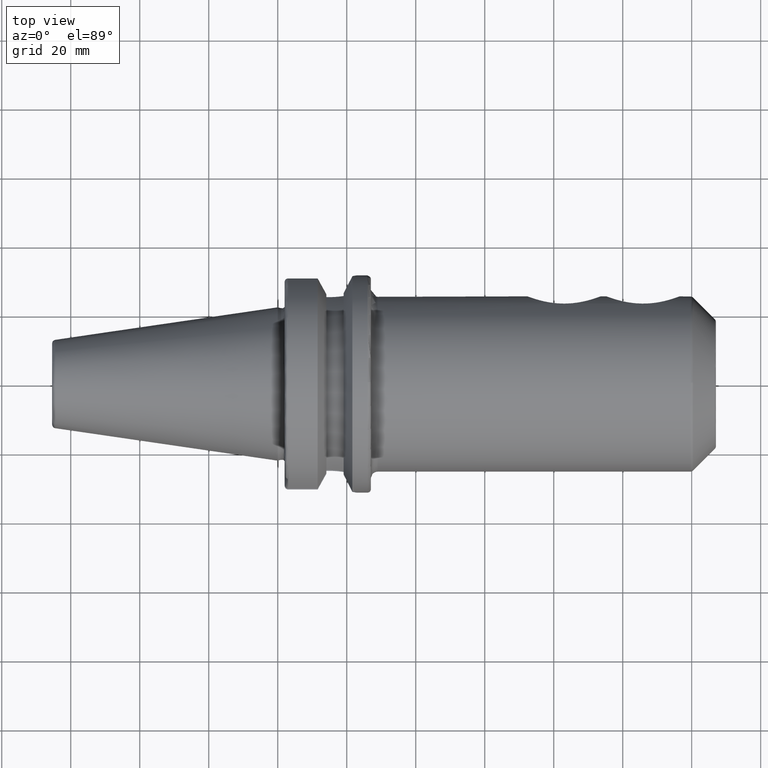
[diagram: clean part render]
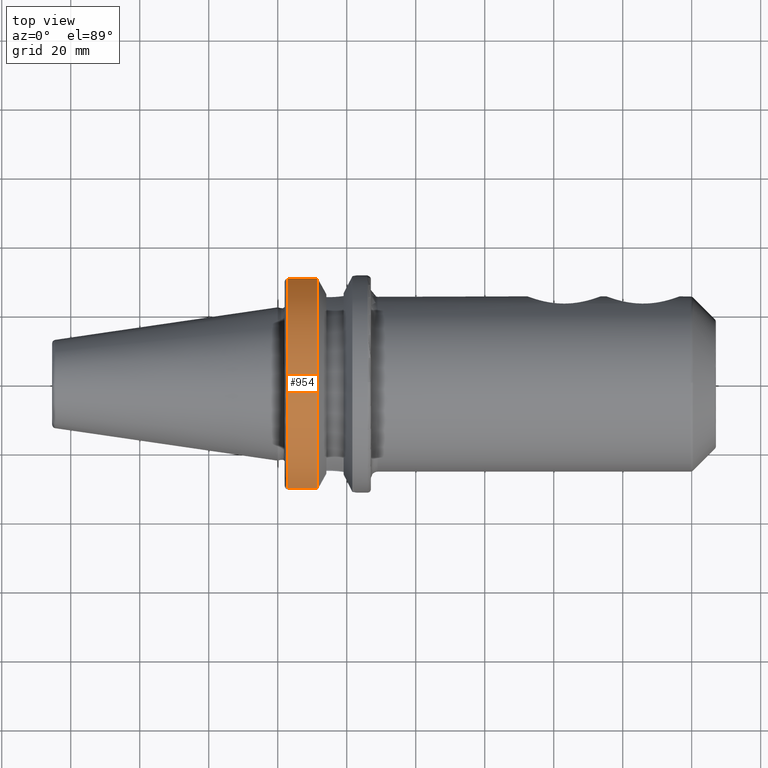
[diagram: same view with one face highlighted and labeled with its STEP entity id]
A machine part, top view. The second image highlights one B-rep face of the part: STEP entity #954.
In plain terms, the highlighted cylindrical surface (partial cylindrical patch) has radius 31.5 mm, axis along (1, 0, 0).
Its self-contained STEP definition (entity closure, byte-faithful):
#72=LINE('',#2011,#121);
#92=LINE('',#2165,#141);
#121=VECTOR('',#1224,10.);
#141=VECTOR('',#1292,10.);
#165=CYLINDRICAL_SURFACE('',#1084,31.5);
#241=FACE_OUTER_BOUND('',#306,.T.);
#306=EDGE_LOOP('',(#851,#852,#853,#854));
#372=CIRCLE('',#1083,31.5);
#373=CIRCLE('',#1085,31.5000000000001);
#429=VERTEX_POINT('',#2006);
#430=VERTEX_POINT('',#2010);
#459=VERTEX_POINT('',#2153);
#460=VERTEX_POINT('',#2164);
#538=EDGE_CURVE('',#430,#429,#72,.T.);
#581=EDGE_CURVE('',#460,#459,#92,.T.);
#602=EDGE_CURVE('',#459,#430,#372,.T.);
#603=EDGE_CURVE('',#460,#429,#373,.T.);
#851=ORIENTED_EDGE('',*,*,#538,.T.);
#852=ORIENTED_EDGE('',*,*,#603,.F.);
#853=ORIENTED_EDGE('',*,*,#581,.T.);
#854=ORIENTED_EDGE('',*,*,#602,.T.);
#954=ADVANCED_FACE('',(#241),#165,.T.);
#1083=AXIS2_PLACEMENT_3D('',#2208,#1344,#1345);
#1084=AXIS2_PLACEMENT_3D('',#2209,#1346,#1347);
#1085=AXIS2_PLACEMENT_3D('',#2210,#1348,#1349);
#1224=DIRECTION('',(1.,0.,0.));
#1292=DIRECTION('',(-1.,0.,0.));
#1344=DIRECTION('center_axis',(1.,0.,0.));
#1345=DIRECTION('ref_axis',(0.,0.,-1.));
#1346=DIRECTION('center_axis',(1.,0.,0.));
#1347=DIRECTION('ref_axis',(0.,1.,0.));
#1348=DIRECTION('center_axis',(1.,0.,0.));
#1349=DIRECTION('ref_axis',(0.,0.,-1.));
#2006=CARTESIAN_POINT('',(11.5690363073382,-30.4540227227866,8.05));
#2010=CARTESIAN_POINT('',(2.99999999999999,-30.4540227227866,8.05));
#2011=CARTESIAN_POINT('',(7.28451815366907,-30.4540227227866,8.05));
#2153=CARTESIAN_POINT('',(2.99999999999999,30.4540227227866,8.05));
#2164=CARTESIAN_POINT('',(11.5690363073382,30.4540227227866,8.05));
#2165=CARTESIAN_POINT('',(7.28451815366907,30.4540227227866,8.05));
#2208=CARTESIAN_POINT('Origin',(2.99999999999999,0.,0.));
#2209=CARTESIAN_POINT('Origin',(7.28451815366907,0.,0.));
#2210=CARTESIAN_POINT('Origin',(11.5690363073382,0.,0.));